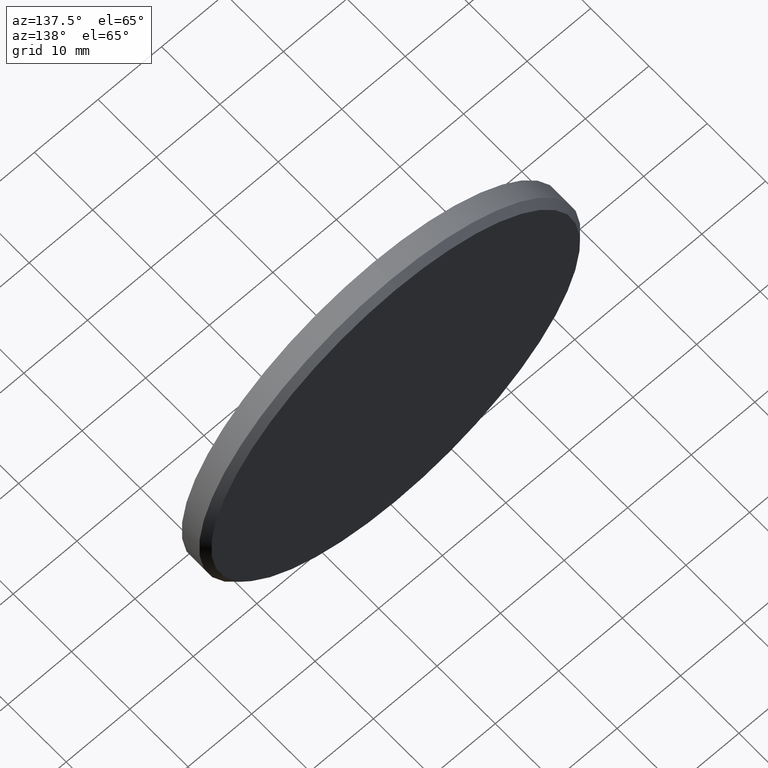
[diagram: clean part render]
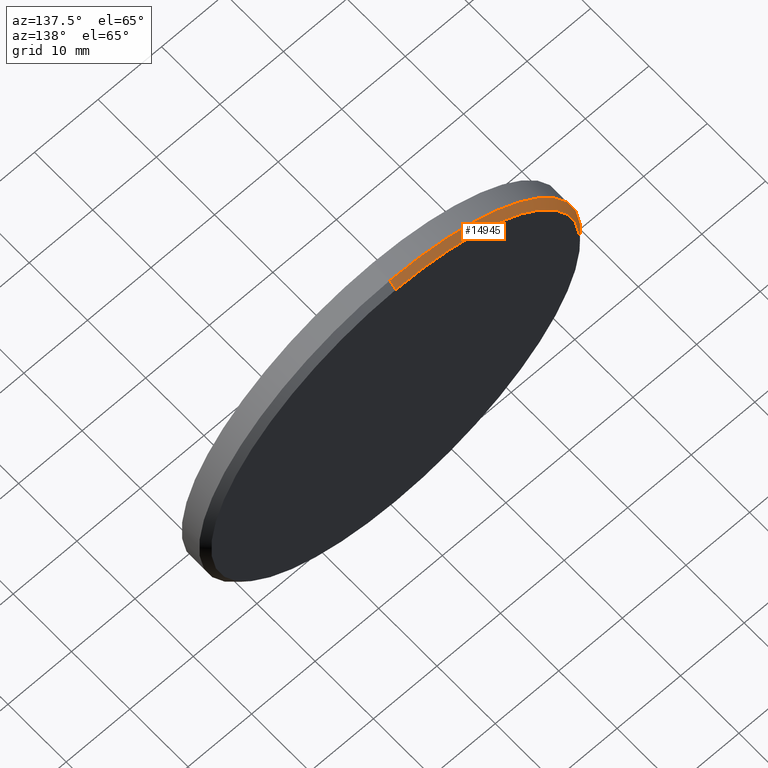
[diagram: same view with one face highlighted and labeled with its STEP entity id]
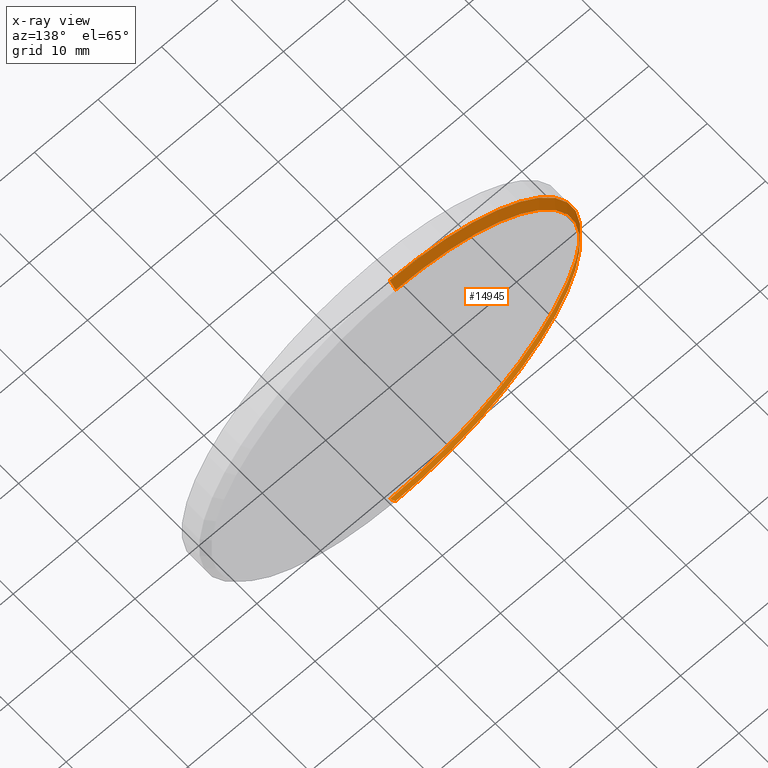
[diagram: x-ray of the same camera — body ghosted, the highlighted face saturated]
A machine part, auxiliary view. The second image highlights one B-rep face of the part: STEP entity #14945.
The next image is the same camera in x-ray: the body ghosted, the highlighted face saturated — about 0% of this face is hidden behind the body in this view.
In plain terms, the highlighted conical surface has half-angle 45 deg.
Its self-contained STEP definition (entity closure, byte-faithful):
#543 = DIRECTION ( 'NONE',  ( 0.000000000000000000, -0.7071067811865462405, -0.7071067811865489050 ) ) ;
#597 = CARTESIAN_POINT ( 'NONE',  ( 0.000000000000000000, 2.000000000000000000, -29.00000000000000000 ) ) ;
#660 = EDGE_CURVE ( 'NONE', #13105, #8239, #7403, .T. ) ;
#981 = ORIENTED_EDGE ( 'NONE', *, *, #10754, .F. ) ;
#1387 = LINE ( 'NONE', #11194, #7783 ) ;
#2010 = CARTESIAN_POINT ( 'NONE',  ( 0.000000000000000000, 1.000000000000006217, 0.000000000000000000 ) ) ;
#2684 = CARTESIAN_POINT ( 'NONE',  ( 0.000000000000000000, 2.000000000000000000, 0.000000000000000000 ) ) ;
#2703 = VERTEX_POINT ( 'NONE', #597 ) ;
#3448 = CARTESIAN_POINT ( 'NONE',  ( 0.000000000000000000, 1.000000000000006217, -30.00000000000000000 ) ) ;
#4246 = AXIS2_PLACEMENT_3D ( 'NONE', #2684, #10832, #6243 ) ;
#4583 = ORIENTED_EDGE ( 'NONE', *, *, #9517, .T. ) ;
#4791 = CONICAL_SURFACE ( 'NONE', #4246, 29.00000000000000000, 0.7853981633974501664 ) ;
#5449 = DIRECTION ( 'NONE',  ( 0.000000000000000000, -1.000000000000000000, 0.000000000000000000 ) ) ;
#5988 = CARTESIAN_POINT ( 'NONE',  ( 3.551475717527324030E-15, 2.000000000000000000, 29.00000000000000000 ) ) ;
#6070 = FACE_OUTER_BOUND ( 'NONE', #14658, .T. ) ;
#6243 = DIRECTION ( 'NONE',  ( 0.000000000000000000, 0.000000000000000000, -1.000000000000000000 ) ) ;
#7191 = VECTOR ( 'NONE', #10619, 999.9999999999998863 ) ;
#7403 = CIRCLE ( 'NONE', #10819, 30.00000000000000000 ) ;
#7783 = VECTOR ( 'NONE', #543, 999.9999999999998863 ) ;
#8239 = VERTEX_POINT ( 'NONE', #3448 ) ;
#8904 = DIRECTION ( 'NONE',  ( 0.000000000000000000, 0.000000000000000000, 1.000000000000000000 ) ) ;
#9434 = ORIENTED_EDGE ( 'NONE', *, *, #660, .F. ) ;
#9517 = EDGE_CURVE ( 'NONE', #2703, #8239, #1387, .T. ) ;
#9545 = LINE ( 'NONE', #5988, #7191 ) ;
#9586 = AXIS2_PLACEMENT_3D ( 'NONE', #11339, #13699, #8904 ) ;
#10509 = CARTESIAN_POINT ( 'NONE',  ( 3.612708057484691604E-15, 2.000000000000000000, 29.00000000000000000 ) ) ;
#10619 = DIRECTION ( 'NONE',  ( 8.659560562354950115E-17, -0.7071067811865462405, 0.7071067811865489050 ) ) ;
#10754 = EDGE_CURVE ( 'NONE', #2703, #11336, #13774, .T. ) ;
#10819 = AXIS2_PLACEMENT_3D ( 'NONE', #2010, #5449, #14862 ) ;
#10832 = DIRECTION ( 'NONE',  ( 0.000000000000000000, -1.000000000000000000, 0.000000000000000000 ) ) ;
#11194 = CARTESIAN_POINT ( 'NONE',  ( 0.000000000000000000, 2.000000000000000000, -29.00000000000000000 ) ) ;
#11336 = VERTEX_POINT ( 'NONE', #10509 ) ;
#11339 = CARTESIAN_POINT ( 'NONE',  ( 0.000000000000000000, 2.000000000000000000, 0.000000000000000000 ) ) ;
#11986 = CARTESIAN_POINT ( 'NONE',  ( 3.673940397442059178E-15, 1.000000000000006217, 30.00000000000000000 ) ) ;
#12363 = EDGE_CURVE ( 'NONE', #11336, #13105, #9545, .T. ) ;
#13105 = VERTEX_POINT ( 'NONE', #11986 ) ;
#13699 = DIRECTION ( 'NONE',  ( 0.000000000000000000, 1.000000000000000000, 0.000000000000000000 ) ) ;
#13774 = CIRCLE ( 'NONE', #9586, 29.00000000000000000 ) ;
#14658 = EDGE_LOOP ( 'NONE', ( #14941, #981, #4583, #9434 ) ) ;
#14862 = DIRECTION ( 'NONE',  ( 0.000000000000000000, 0.000000000000000000, 1.000000000000000000 ) ) ;
#14941 = ORIENTED_EDGE ( 'NONE', *, *, #12363, .F. ) ;
#14945 = ADVANCED_FACE ( 'NONE', ( #6070 ), #4791, .T. ) ;